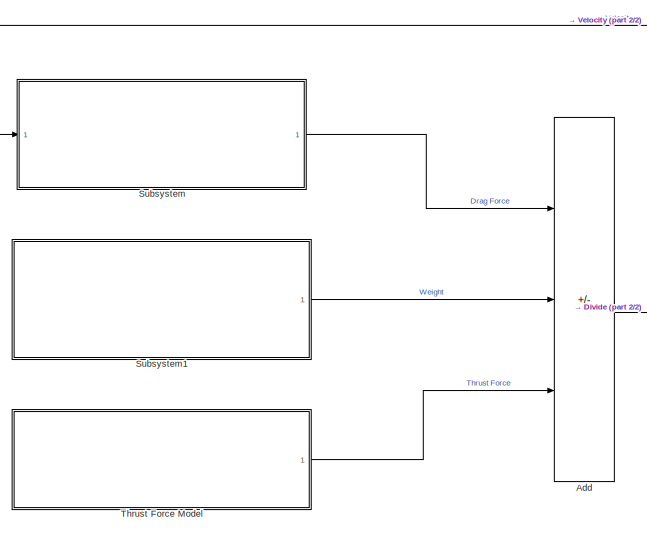
[diagram: root canvas - part 1/2, left side, full height]
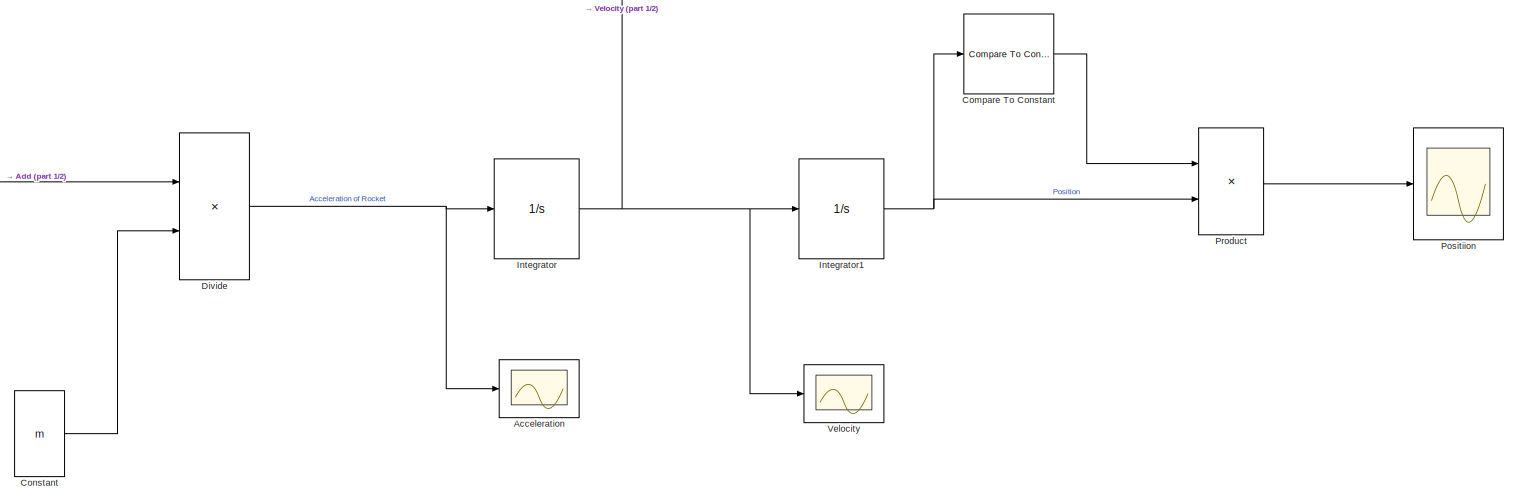
[diagram: root canvas - part 2/2, center side, full height]
MODEL slx_01cf17df8b80
KIND model
CONFIG AbsTol = auto
CONFIG EnableMultiTasking = off
CONFIG FixedStep = auto
CONFIG MaxStep = auto
CONFIG MinStep = auto
CONFIG RelTol = 1e-3
CONFIG SampleTimeConstraint = Unconstrained
CONFIG SolverName = VariableStepAuto
CONFIG StartTime = 0.0
CONFIG StopTime = 44
BLOCK [Scope] Acceleration
  Floating = off
  NumInputPorts = 1
  Ports = [1]
  ScopeSpecificationString = Simulink.scopes.TimeScopeBlockCfg('CurrentConfiguration', extmgr.ConfigurationSet(extmgr.Configuration('Core','General UI',true),extmgr.Configuration('Core','Source UI',true),extmgr.Configuration('Sources','WiredSimulink',true,'DataLoggingVariableName','ScopeData2'),extmgr.Configuration('Visuals','Time Domain',true,'SerializedDisplays',{struct('MinYLimReal','-24.77233','MaxYLimReal','47.40804','YL...<+1424ch>
BLOCK [Sum] Add
  IconShape = rectangular
  Inputs = --+
  Ports = [3, 1]
BLOCK [Reference] Compare To Constant  REF=simulink/Logic and Bit
Operations/Compare
To Constant
  Ports = [1, 1]
  SourceBlock = simulink/Logic and Bit\nOperations/Compare\nTo Constant
  SourceProductBaseCode = SL
  SourceType = Compare To Constant
BLOCK [Constant] Constant
  Value = m
BLOCK [Product] Divide
  Inputs = */
  Ports = [2, 1]
BLOCK [Integrator] Integrator
  Ports = [1, 1]
BLOCK [Integrator] Integrator1
  Ports = [1, 1]
BLOCK [Scope] Positiion
  Floating = off
  NumInputPorts = 1
  Ports = [1]
  ScopeSpecificationString = Simulink.scopes.TimeScopeBlockCfg('CurrentConfiguration', extmgr.ConfigurationSet(extmgr.Configuration('Core','General UI',true),extmgr.Configuration('Core','Source UI',true),extmgr.Configuration('Sources','WiredSimulink',true),extmgr.Configuration('Visuals','Time Domain',true,'SerializedDisplays',{struct('MinYLimReal','-259.28332','MaxYLimReal','2333.54984','YLabelReal','','MinYLimMag',' 0.00000'...<+1381ch>
BLOCK [Product] Product
  Ports = [2, 1]
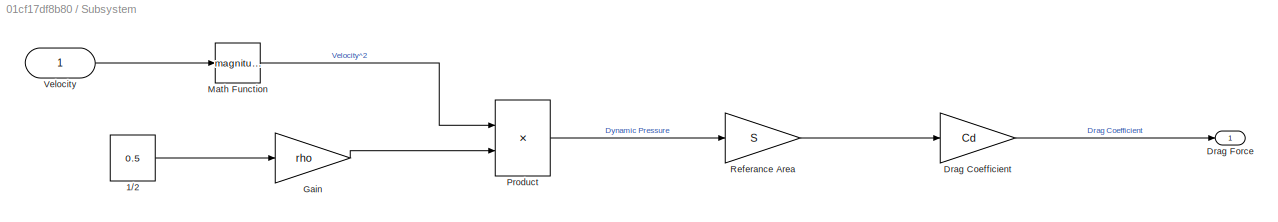
BLOCK [SubSystem] Subsystem
  Ports = [1, 1]
  RequestExecContextInheritance = off
BLOCK [Constant] Subsystem/1//2
  Value = 0.5
BLOCK [Gain] Subsystem/Drag Coefficient
  Gain = Cd
BLOCK [Outport] Subsystem/Drag Force
BLOCK [Gain] Subsystem/Gain
  Gain = rho
BLOCK [Math] Subsystem/Math Function
  Operator = magnitude^2
  Ports = [1, 1]
BLOCK [Product] Subsystem/Product
  Ports = [2, 1]
BLOCK [Gain] Subsystem/Referance Area
  Gain = S
BLOCK [Inport] Subsystem/Velocity
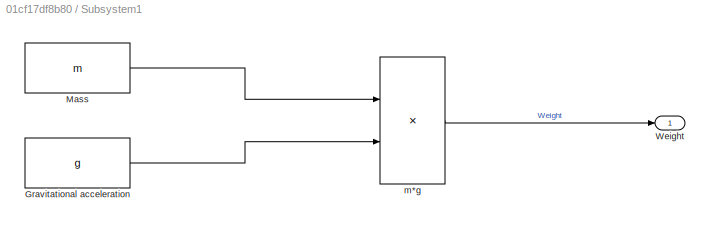
BLOCK [SubSystem] Subsystem1
  Ports = [0, 1]
  RequestExecContextInheritance = off
BLOCK [Constant] Subsystem1/Gravitational acceleration
  Value = g
BLOCK [Constant] Subsystem1/Mass
  Value = m
BLOCK [Outport] Subsystem1/Weight
BLOCK [Product] Subsystem1/m*g
  Ports = [2, 1]
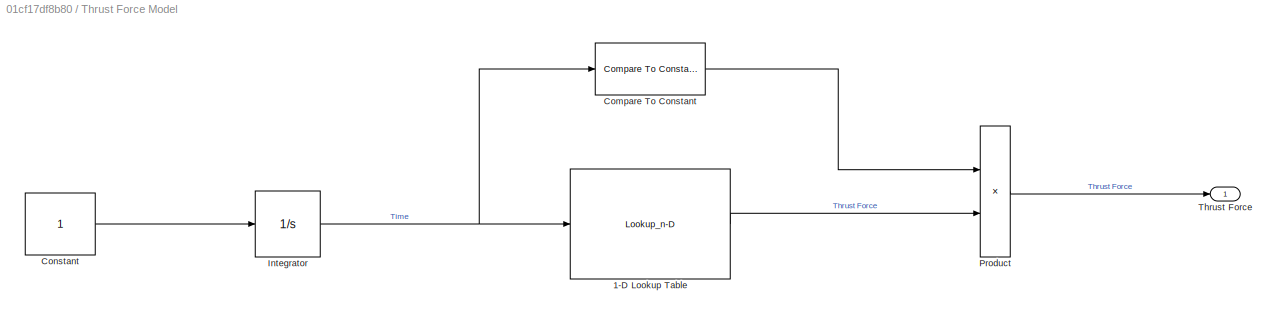
BLOCK [SubSystem] Thrust Force Model
  Ports = [0, 1]
  RequestExecContextInheritance = off
BLOCK [Lookup_n-D] Thrust Force Model/1-D Lookup Table
  BreakpointsForDimension1 = [1:5]
  InputPortMap = u0
  InternalRulePriority = Speed
  NumberOfTableDimensions = 1
  Ports = [1, 1]
  RndMeth = Simplest
  Table = Thrust_Vector
BLOCK [Reference] Thrust Force Model/Compare To Constant  REF=simulink/Logic and Bit
Operations/Compare
To Constant
  Ports = [1, 1]
  SourceBlock = simulink/Logic and Bit\nOperations/Compare\nTo Constant
  SourceProductBaseCode = SL
  SourceType = Compare To Constant
BLOCK [Constant] Thrust Force Model/Constant
BLOCK [Integrator] Thrust Force Model/Integrator
  Ports = [1, 1]
BLOCK [Product] Thrust Force Model/Product
  Ports = [2, 1]
BLOCK [Outport] Thrust Force Model/Thrust Force
BLOCK [Scope] Velocity
  Floating = off
  NumInputPorts = 1
  Ports = [1]
  ScopeSpecificationString = Simulink.scopes.TimeScopeBlockCfg('CurrentConfiguration', extmgr.ConfigurationSet(extmgr.Configuration('Core','General UI',true),extmgr.Configuration('Core','Source UI',true),extmgr.Configuration('Sources','WiredSimulink',true,'DataLoggingVariableName','ScopeData1'),extmgr.Configuration('Visuals','Time Domain',true,'SerializedDisplays',{struct('MinYLimReal','-315.55708','MaxYLimReal','250.08876','...<+1416ch>
LINE Add:1 -> Divide:1
LINE Compare To Constant:1 -> Product:1
LINE Constant:1 -> Divide:2
NET Divide:1 -> Acceleration:1, Integrator:1
NET Integrator1:1 -> Compare To Constant:1, Product:2
NET Integrator:1 -> Integrator1:1, Subsystem:1, Velocity:1
LINE Product:1 -> Positiion:1
LINE Subsystem/1//2:1 -> Subsystem/Gain:1
LINE Subsystem/Drag Coefficient:1 -> Subsystem/Drag Force:1
LINE Subsystem/Gain:1 -> Subsystem/Product:2
LINE Subsystem/Math Function:1 -> Subsystem/Product:1
LINE Subsystem/Product:1 -> Subsystem/Referance Area:1
LINE Subsystem/Referance Area:1 -> Subsystem/Drag Coefficient:1
LINE Subsystem/Velocity:1 -> Subsystem/Math Function:1
LINE Subsystem1/Gravitational acceleration:1 -> Subsystem1/m*g:2
LINE Subsystem1/Mass:1 -> Subsystem1/m*g:1
LINE Subsystem1/m*g:1 -> Subsystem1/Weight:1
LINE Subsystem1:1 -> Add:2
LINE Subsystem:1 -> Add:1
LINE Thrust Force Model/1-D Lookup Table:1 -> Thrust Force Model/Product:2
LINE Thrust Force Model/Compare To Constant:1 -> Thrust Force Model/Product:1
LINE Thrust Force Model/Constant:1 -> Thrust Force Model/Integrator:1
NET Thrust Force Model/Integrator:1 -> Thrust Force Model/1-D Lookup Table:1, Thrust Force Model/Compare To Constant:1
LINE Thrust Force Model/Product:1 -> Thrust Force Model/Thrust Force:1
LINE Thrust Force Model:1 -> Add:3
note: NET lines group one-source signal fan-out (src -> all destinations, sorted); 1:1 wires keep LINE
